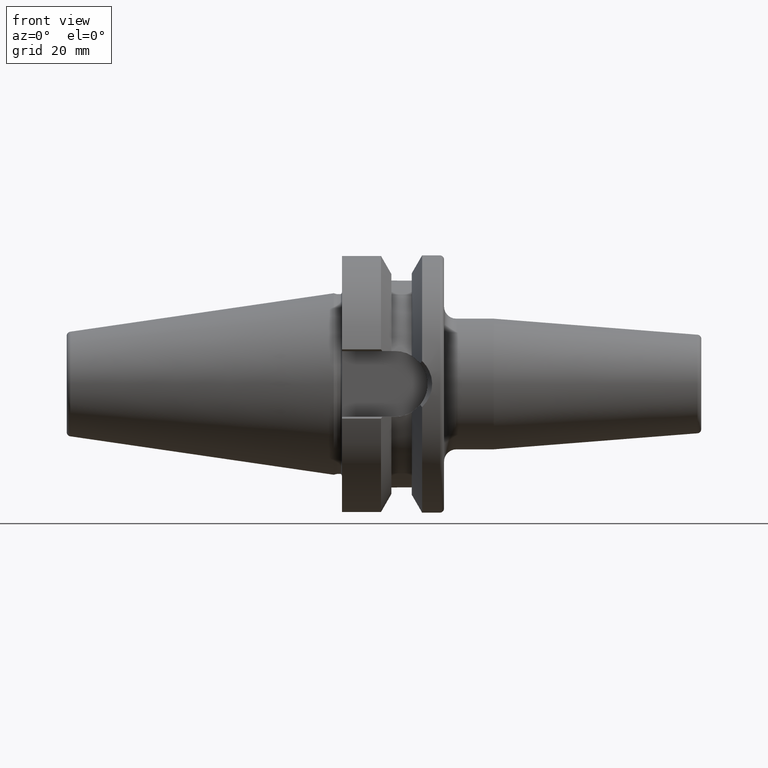
[diagram: clean part render]
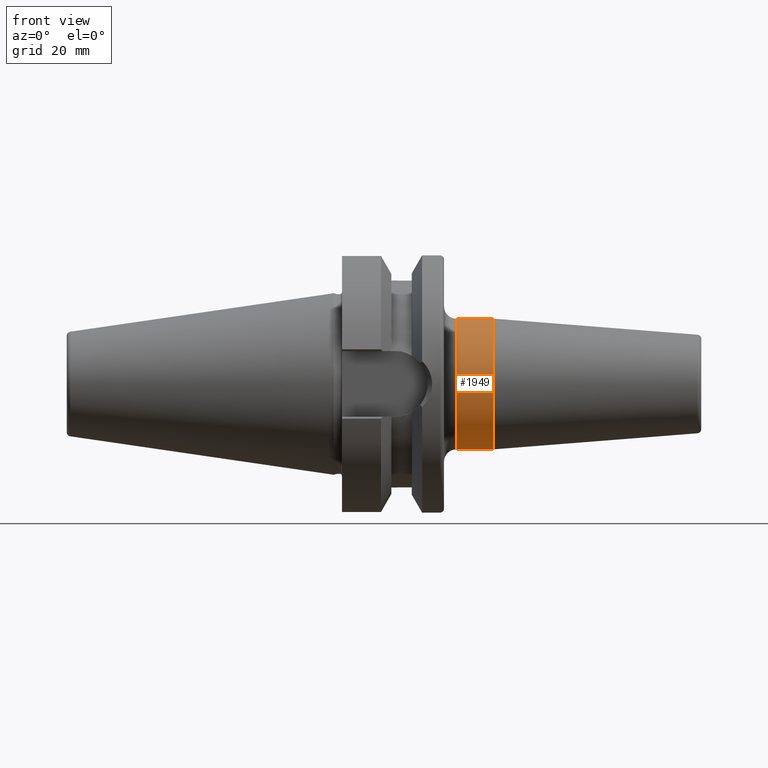
[diagram: same view with one face highlighted and labeled with its STEP entity id]
A machine part, front view. The second image highlights one B-rep face of the part: STEP entity #1949.
In plain terms, the highlighted cylindrical surface (partial cylindrical patch) has radius 16 mm, axis along (1, 0, 0).
Its self-contained STEP definition (entity closure, byte-faithful):
#450=DIRECTION('',(-1.E0,0.E0,0.E0));
#451=VECTOR('',#450,9.175181055302E0);
#452=CARTESIAN_POINT('',(3.917518105530E1,0.E0,-1.6E1));
#453=LINE('',#452,#451);
#454=DIRECTION('',(-1.E0,0.E0,0.E0));
#455=VECTOR('',#454,9.175181055302E0);
#456=CARTESIAN_POINT('',(3.917518105530E1,0.E0,1.6E1));
#457=LINE('',#456,#455);
#458=CARTESIAN_POINT('',(3.917518105530E1,0.E0,0.E0));
#459=DIRECTION('',(-1.E0,0.E0,0.E0));
#460=DIRECTION('',(0.E0,0.E0,-1.E0));
#461=AXIS2_PLACEMENT_3D('',#458,#459,#460);
#998=CARTESIAN_POINT('',(3.E1,0.E0,0.E0));
#999=DIRECTION('',(-1.E0,0.E0,0.E0));
#1000=DIRECTION('',(0.E0,0.E0,-1.E0));
#1001=AXIS2_PLACEMENT_3D('',#998,#999,#1000);
#1211=CARTESIAN_POINT('',(3.917518105530E1,0.E0,-1.6E1));
#1212=VERTEX_POINT('',#1211);
#1213=CARTESIAN_POINT('',(3.E1,0.E0,-1.6E1));
#1214=VERTEX_POINT('',#1213);
#1233=CARTESIAN_POINT('',(3.917518105530E1,0.E0,1.6E1));
#1234=VERTEX_POINT('',#1233);
#1235=CARTESIAN_POINT('',(3.E1,0.E0,1.6E1));
#1236=VERTEX_POINT('',#1235);
#1935=CARTESIAN_POINT('',(2.385E1,0.E0,0.E0));
#1936=DIRECTION('',(1.E0,0.E0,0.E0));
#1937=DIRECTION('',(0.E0,0.E0,1.E0));
#1938=AXIS2_PLACEMENT_3D('',#1935,#1936,#1937);
#1939=CYLINDRICAL_SURFACE('',#1938,1.6E1);
#1941=ORIENTED_EDGE('',*,*,#1940,.T.);
#1943=ORIENTED_EDGE('',*,*,#1942,.T.);
#1945=ORIENTED_EDGE('',*,*,#1944,.F.);
#1946=ORIENTED_EDGE('',*,*,#1928,.F.);
#1947=EDGE_LOOP('',(#1941,#1943,#1945,#1946));
#1948=FACE_OUTER_BOUND('',#1947,.F.);
#1949=ADVANCED_FACE('',(#1948),#1939,.T.);
#462=CIRCLE('',#461,1.6E1);
#1002=CIRCLE('',#1001,1.6E1);
#1928=EDGE_CURVE('',#1212,#1234,#462,.T.);
#1940=EDGE_CURVE('',#1212,#1214,#453,.T.);
#1942=EDGE_CURVE('',#1214,#1236,#1002,.T.);
#1944=EDGE_CURVE('',#1234,#1236,#457,.T.);